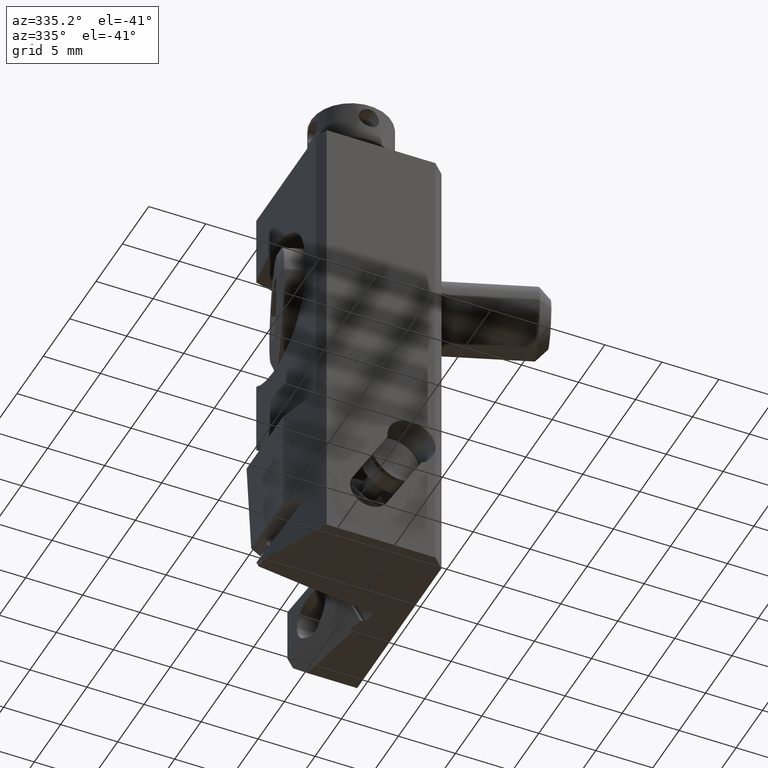
[diagram: clean part render]
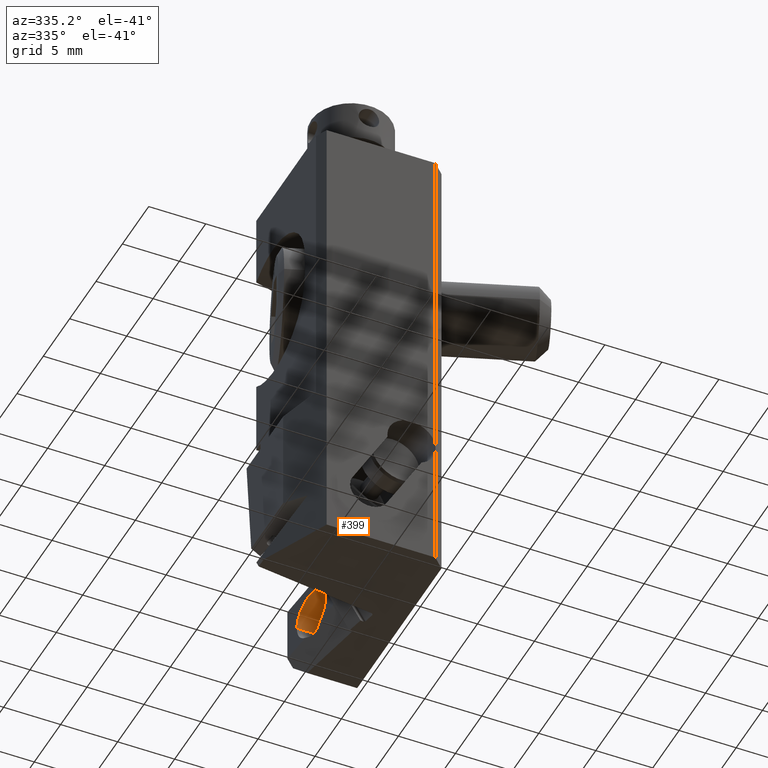
[diagram: same view with one face highlighted and labeled with its STEP entity id]
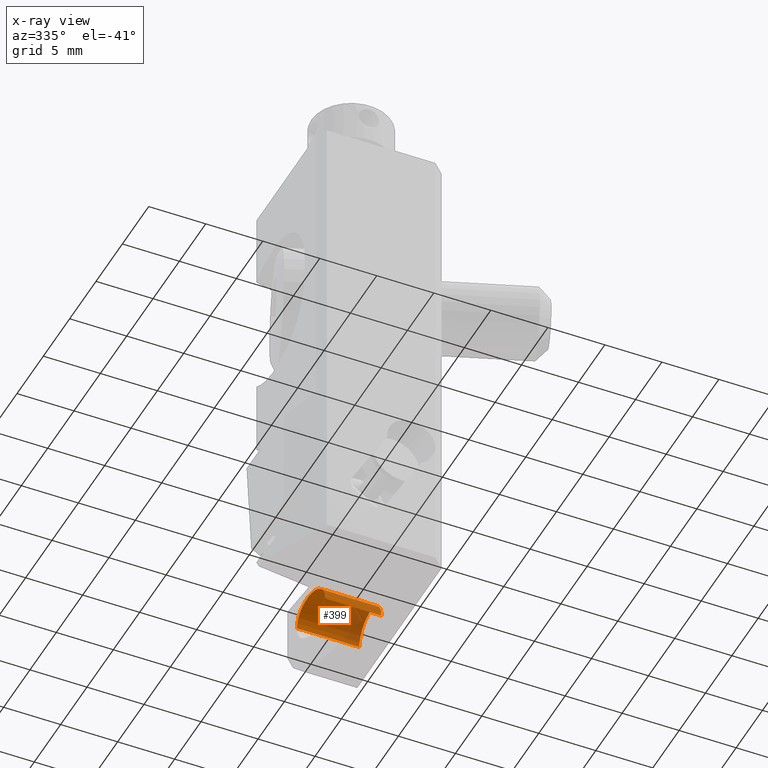
[diagram: x-ray of the same camera — body ghosted, the highlighted face saturated]
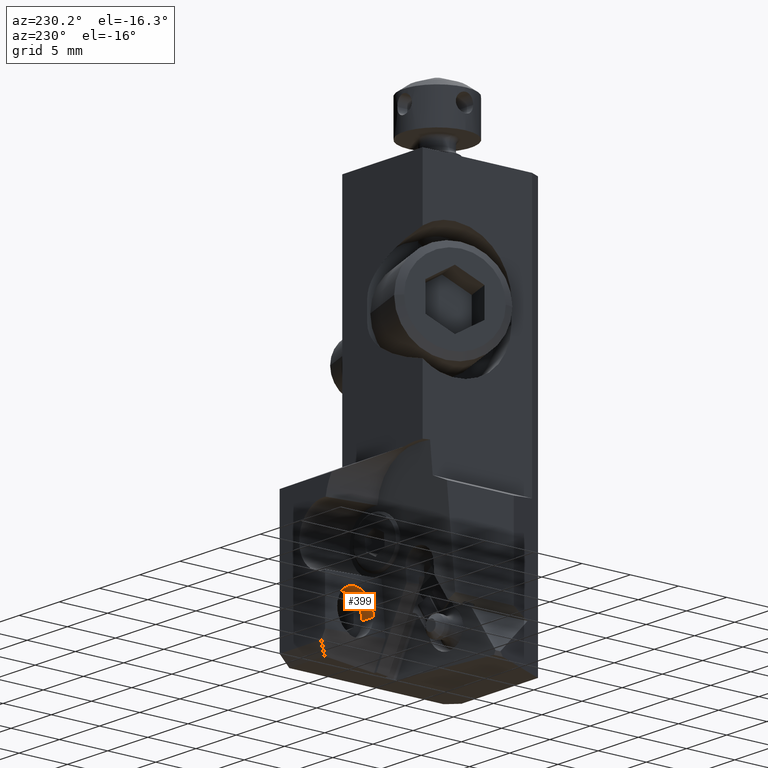
[diagram: same view with one face highlighted and labeled with its STEP entity id]
A machine part, auxiliary view. The second image highlights one B-rep face of the part: STEP entity #399.
The next image is the same camera in x-ray: the body ghosted, the highlighted face saturated — about 36% of this face is hidden behind the body in this view.
A second angle (auxiliary view) of the same face is appended — the face is thin or edge-on in the first view.
In plain terms, the highlighted cylindrical surface (edge-blend (fillet) strip) has radius 2.1 mm, axis along (1, 0, 0).
Its self-contained STEP definition (entity closure, byte-faithful):
#144=CYLINDRICAL_SURFACE('',#4285,2.1);
#223=CIRCLE('',#4284,2.1);
#399=ADVANCED_FACE('',(#728),#144,.F.);
#728=FACE_OUTER_BOUND('',#940,.T.);
#940=EDGE_LOOP('',(#1376,#1377,#1378,#1379));
#1196=ELLIPSE('',#4282,2.11812081721834,2.1);
#1376=ORIENTED_EDGE('',*,*,#2887,.T.);
#1377=ORIENTED_EDGE('',*,*,#2880,.F.);
#1378=ORIENTED_EDGE('',*,*,#2886,.F.);
#1379=ORIENTED_EDGE('',*,*,#2882,.F.);
#2475=VERTEX_POINT('',#6141);
#2476=VERTEX_POINT('',#6143);
#2477=VERTEX_POINT('',#6145);
#2478=VERTEX_POINT('',#6147);
#2880=EDGE_CURVE('',#2475,#2476,#3446,.T.);
#2882=EDGE_CURVE('',#2477,#2478,#3447,.T.);
#2886=EDGE_CURVE('',#2478,#2475,#1196,.T.);
#2887=EDGE_CURVE('',#2477,#2476,#223,.T.);
#3446=LINE('',#6142,#3799);
#3447=LINE('',#6146,#3800);
#3799=VECTOR('',#4864,1.);
#3800=VECTOR('',#4867,1.);
#4282=AXIS2_PLACEMENT_3D('',#6153,#4874,#4875);
#4284=AXIS2_PLACEMENT_3D('',#6155,#4878,#4879);
#4285=AXIS2_PLACEMENT_3D('',#6156,#4880,#4881);
#4864=DIRECTION('',(1.,0.,0.));
#4867=DIRECTION('',(-1.,0.,0.));
#4874=DIRECTION('',(0.991444861373804,0.130526192220101,-6.72802578001403E-14));
#4875=DIRECTION('',(0.130526192220101,-0.991444861373804,5.11044294890429E-13));
#4878=DIRECTION('',(1.,0.,0.));
#4879=DIRECTION('',(0.,1.,0.));
#4880=DIRECTION('',(1.,0.,0.));
#4881=DIRECTION('',(0.,-1.,0.));
#6141=CARTESIAN_POINT('',(-4.91985104790616,12.4,-37.60049189996));
#6142=CARTESIAN_POINT('',(-4.919851047906,12.4,-37.60049189996));
#6143=CARTESIAN_POINT('',(1.86517468137E-14,12.4,-37.60049189996));
#6145=CARTESIAN_POINT('',(1.86517468137E-14,16.6,-37.60049189996));
#6146=CARTESIAN_POINT('',(0.,16.6,-37.60049189996));
#6147=CARTESIAN_POINT('',(-5.47279153777329,16.6,-37.60049189996));
#6153=CARTESIAN_POINT('',(-5.19632129283995,14.5,-37.60049189996));
#6155=CARTESIAN_POINT('',(1.86517468137E-14,14.5,-37.60049189996));
#6156=CARTESIAN_POINT('',(-5.582247368528,14.5,-37.60049189996));